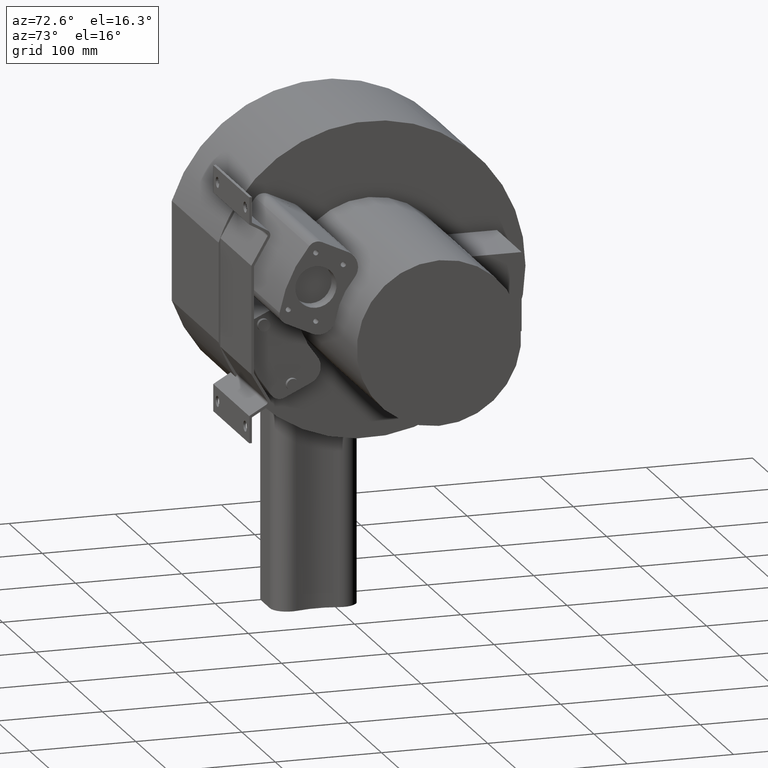
[diagram: clean part render]
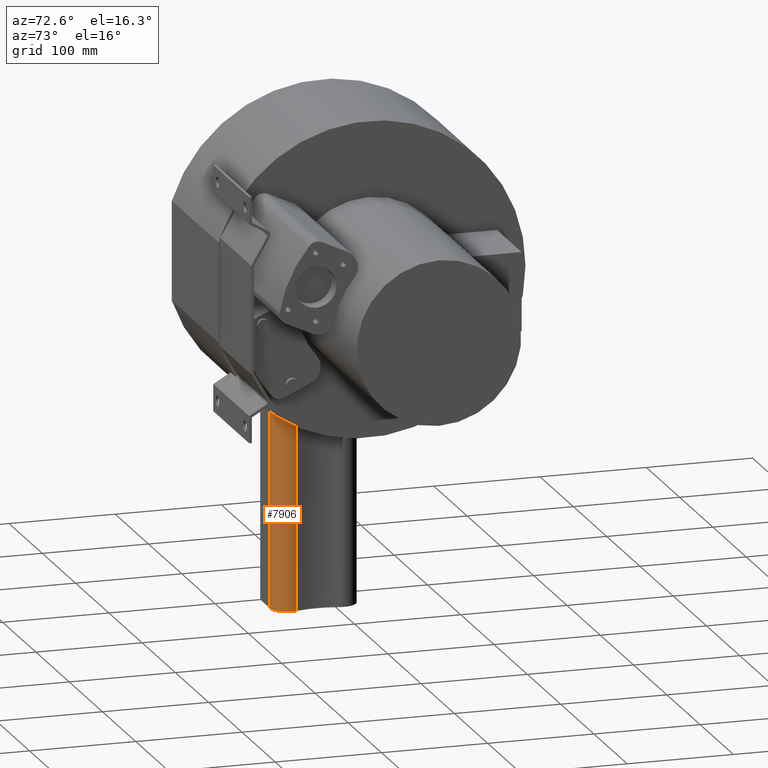
[diagram: same view with one face highlighted and labeled with its STEP entity id]
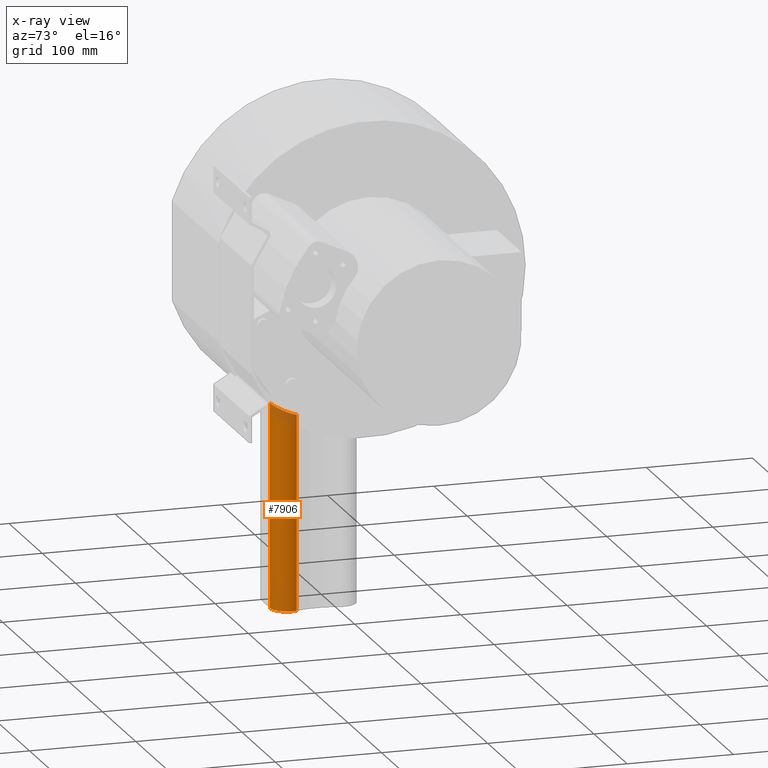
[diagram: x-ray of the same camera — body ghosted, the highlighted face saturated]
A machine part, auxiliary view. The second image highlights one B-rep face of the part: STEP entity #7906.
The next image is the same camera in x-ray: the body ghosted, the highlighted face saturated — about 5% of this face is hidden behind the body in this view.
In plain terms, the highlighted cylindrical surface (edge-blend (fillet) strip) has radius 16 mm, axis along (0, 0, -1).
Its self-contained STEP definition (entity closure, byte-faithful):
#7832=CARTESIAN_POINT('',(61.009438665087004,-67.500000000000014,-131.99171375506873));
#7833=VERTEX_POINT('',#7832);
#7841=CARTESIAN_POINT('',(61.009438665087004,-67.500000000000014,-324.0));
#7842=VERTEX_POINT('',#7841);
#7849=CARTESIAN_POINT('',(61.009438665087004,-67.500000000000014,-131.99171375506873));
#7850=DIRECTION('',(0.0,0.0,-1.0));
#7851=VECTOR('',#7850,192.00828624493127);
#7852=LINE('',#7849,#7851);
#7853=EDGE_CURVE('',#7833,#7842,#7852,.T.);
#7858=CARTESIAN_POINT('',(61.009438665087004,-51.5,0.0));
#7859=DIRECTION('',(0.0,0.0,-1.0));
#7860=DIRECTION('',(0.0,1.0,0.0));
#7861=AXIS2_PLACEMENT_3D('',#7858,#7859,#7860);
#7862=CYLINDRICAL_SURFACE('',#7861,16.0);
#7863=CARTESIAN_POINT('',(76.376840032702447,-47.045454545454547,-140.58729567998515));
#7864=VERTEX_POINT('',#7863);
#7865=CARTESIAN_POINT('',(61.009438665086996,-67.500000000000014,-131.99171375506873));
#7866=CARTESIAN_POINT('',(62.014245639564251,-67.500000000000014,-131.99171375506873));
#7867=CARTESIAN_POINT('',(63.04860745986916,-67.403766652872946,-132.04107287516848));
#7868=CARTESIAN_POINT('',(65.096172767906012,-67.004406068397557,-132.24417662947019));
#7869=CARTESIAN_POINT('',(66.109408384021606,-66.701392581499675,-132.39782100199366));
#7870=CARTESIAN_POINT('',(68.043338012345075,-65.908896533679936,-132.79411179534574));
#7871=CARTESIAN_POINT('',(68.96586981238589,-65.418746998165574,-133.03698091441959));
#7872=CARTESIAN_POINT('',(70.665724246770168,-64.298142967259622,-133.5821827961017));
#7873=CARTESIAN_POINT('',(71.443066678455054,-63.66765735305745,-133.8843898644389));
#7874=CARTESIAN_POINT('',(73.626447687978512,-61.55702820604445,-134.87530943330975));
#7875=CARTESIAN_POINT('',(74.900625583297952,-59.731232148208349,-135.70173428024498));
#7876=CARTESIAN_POINT('',(76.169409249295001,-56.730187172646076,-136.97053673420439));
#7877=CARTESIAN_POINT('',(76.489061841653267,-55.686855263343354,-137.39837915353809));
#7878=CARTESIAN_POINT('',(76.909154312795849,-53.585073861841337,-138.23161831636835));
#7879=CARTESIAN_POINT('',(77.009438665087004,-52.526588402091754,-138.63700273827899));
#7880=CARTESIAN_POINT('',(77.009438665087004,-50.507300693728546,-139.38506293974538));
#7881=CARTESIAN_POINT('',(76.915576008257702,-49.474391222843053,-139.75529518003665));
#7882=CARTESIAN_POINT('',(76.623488954016139,-47.974793664021348,-140.27375041953223));
#7883=CARTESIAN_POINT('',(76.511034828218925,-47.508403078630408,-140.43237681573737));
#7884=CARTESIAN_POINT('',(76.376840032702432,-47.045454545454547,-140.58729567998515));
#7885=B_SPLINE_CURVE_WITH_KNOTS('',3,(#7865,#7866,#7867,#7868,#7869,#7870,#7871,#7872,#7873,#7874,#7875,#7876,#7877,#7878,#7879,#7880,#7881,#7882,#7883,#7884),.UNSPECIFIED.,.F.,.U.,(4,2,2,2,2,2,2,2,2,4),(4.990353791325791,5.29179588366897,5.593237976012148,5.894680068355326,6.196122160698503,6.852983081960404,7.181413542591354,7.509844003222304,7.827432522401406,7.970734057296448),.UNSPECIFIED.);
#7886=EDGE_CURVE('',#7833,#7864,#7885,.T.);
#7887=ORIENTED_EDGE('',*,*,#7886,.F.);
#7888=ORIENTED_EDGE('',*,*,#7853,.T.);
#7889=CARTESIAN_POINT('',(76.376840032702447,-47.045454545454547,-324.0));
#7890=VERTEX_POINT('',#7889);
#7891=CARTESIAN_POINT('',(61.009438665087004,-51.5,-324.0));
#7892=DIRECTION('',(0.0,0.0,1.0));
#7893=DIRECTION('',(0.0,1.0,0.0));
#7894=AXIS2_PLACEMENT_3D('',#7891,#7892,#7893);
#7895=CIRCLE('',#7894,16.0);
#7896=EDGE_CURVE('',#7842,#7890,#7895,.T.);
#7897=ORIENTED_EDGE('',*,*,#7896,.T.);
#7898=CARTESIAN_POINT('',(76.376840032702447,-47.045454545454547,-140.58729567998515));
#7899=DIRECTION('',(0.0,0.0,-1.0));
#7900=VECTOR('',#7899,183.41270432001485);
#7901=LINE('',#7898,#7900);
#7902=EDGE_CURVE('',#7864,#7890,#7901,.T.);
#7903=ORIENTED_EDGE('',*,*,#7902,.F.);
#7904=EDGE_LOOP('',(#7887,#7888,#7897,#7903));
#7905=FACE_OUTER_BOUND('',#7904,.T.);
#7906=ADVANCED_FACE('',(#7905),#7862,.T.);